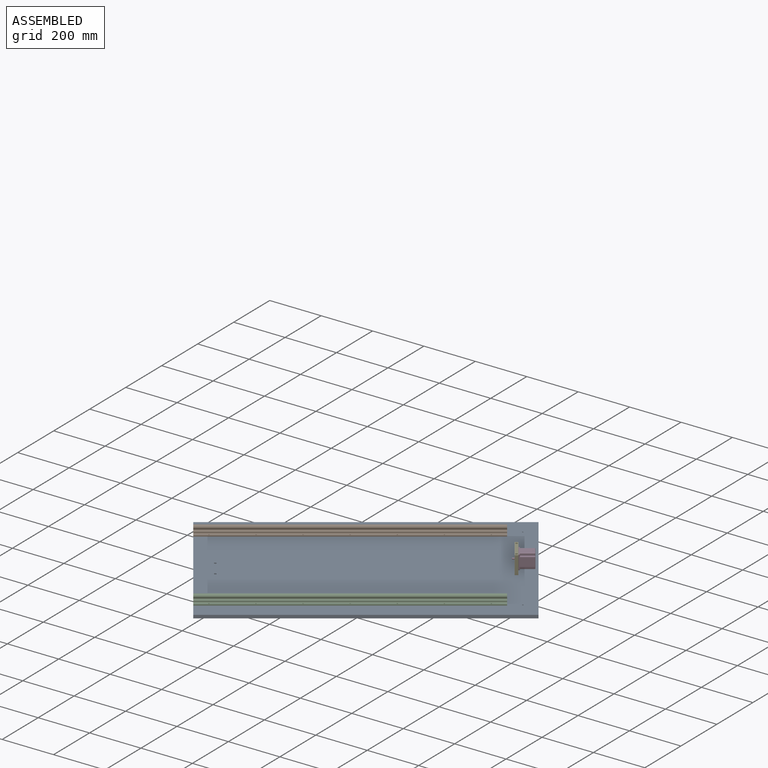
[diagram: assembled view]
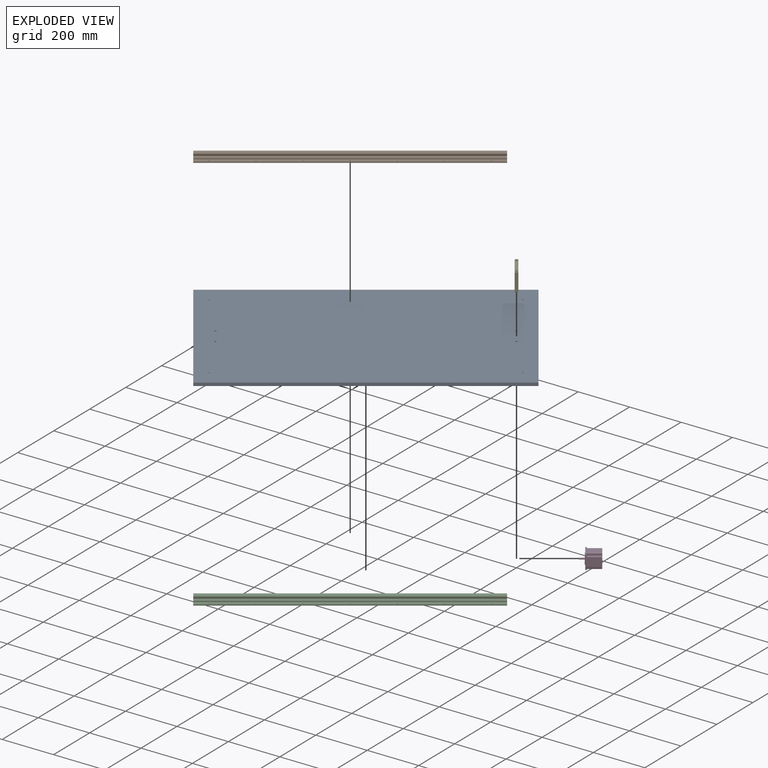
[diagram: exploded view]
GUIDED TOUR — MATED ASSEMBLY WITH SUBASSEMBLIES (Onshape document e3730855ec12d50056c667b2, AutoMate assembly e3730855ec12d50056c667b2_a9c1e416ee57fb49bd9009c7_259406f26e9c5aa0bfa9100a_default)

This assembly has 6 component occurrences arranged in 5 top-level units: 4 individual components plus 1 subassembly (S0). The tour has two levels: first the top level, where each subassembly is treated as one rigid unit; then each subassembly is toured internally in its own section (nesting deeper than one subassembly level is flattened into its subassembly's section).

Components are labeled P0..P5 across the whole record; subassembly units are labeled S0..S0. A mate is a constraint between two units; its type names the relative motion it leaves free:
  CYLINDRICAL — leaves both rotation about and translation along the listed axis free,
  FASTENED — locks the two components together rigidly (no relative motion),
  REVOLUTE — leaves rotation about the listed axis free (a hinge).
Axis/direction vectors are unit vectors and 'through' points are millimeter coordinates, both in the assembly's world frame.

TOP-LEVEL MATES (between units; each subassembly's internal mates are listed in its own section)
  1. FASTENED "Fastened 3": S0 <-> P5, direction (-0.819, -0.574, 0.000) through (242.42, 350.53, 243.28) mm
  2. REVOLUTE "Revolute 2": P5 <-> P0, axis (0.000, 0.000, -1.000) through (273.99, 294.98, 184.66) mm
  3. REVOLUTE "Revolute 1": P0 <-> P5, axis (0.000, 0.000, 1.000) through (228.11, 360.51, 184.66) mm
  4. FASTENED "Fastened 2": P0 <-> P1, direction (0.000, 0.000, 1.000) through (-709.45, -9.10, 184.66) mm
  5. FASTENED "Fastened 1": P0 <-> P2, direction (0.000, 0.000, 1.000) through (-393.99, -459.63, 184.66) mm

TOP-LEVEL ASSEMBLY ORDER
  1. P2 — the base component [order verified]
  2. P1 [order verified]
  3. P5 [order verified]
  4. S0 [order verified]
  5. P0 [order verified]
Order-tag legend:
  [order verified] — this step's position reverses a verified removal order: the component was checked to insert without passing through the ones already placed.

Of the 6 component occurrences, 2 carry the full construction recipe — the FeatureScript program that regenerates the part's solid from scratch; the rest are supplied as boundary geometry only. Each toured unit is shown spotlighted twice — assembled, then exploded with a leader line back to its socket (green = recipe-attached component, orange = geometry-only, blue = subassembly unit; the rest desaturated gray).
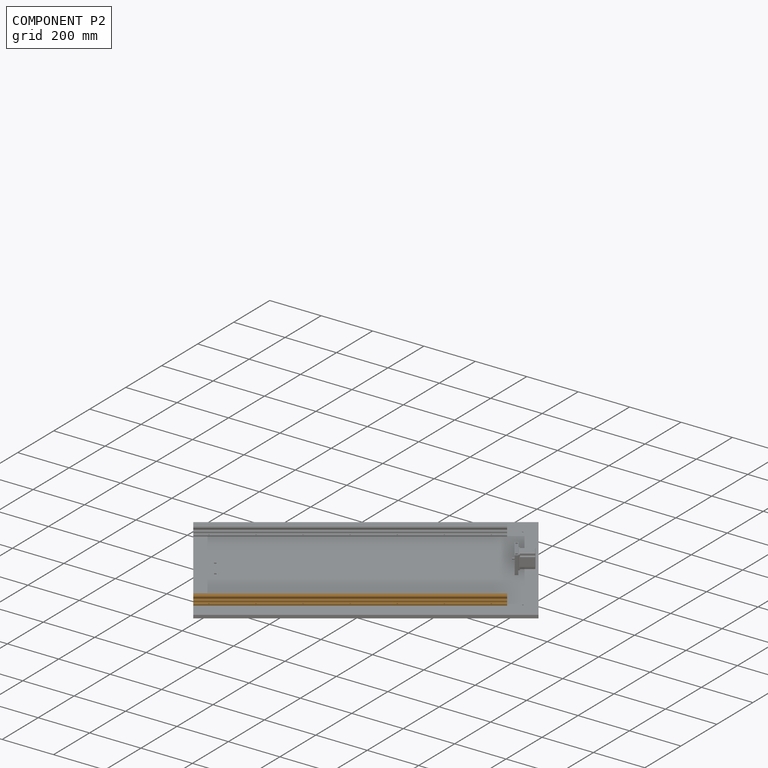
[diagram: component P2 — assembled]
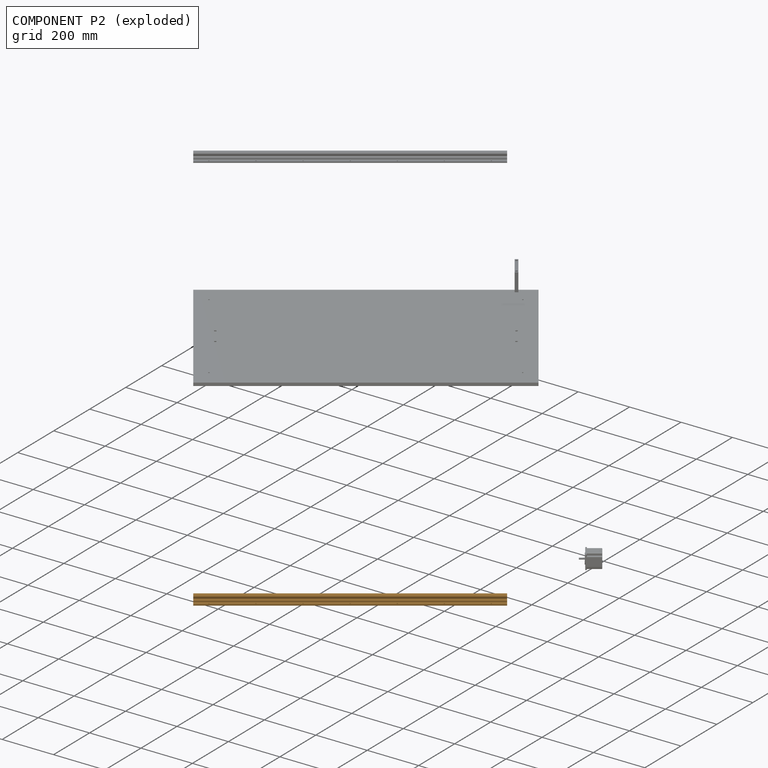
[diagram: component P2 — exploded]
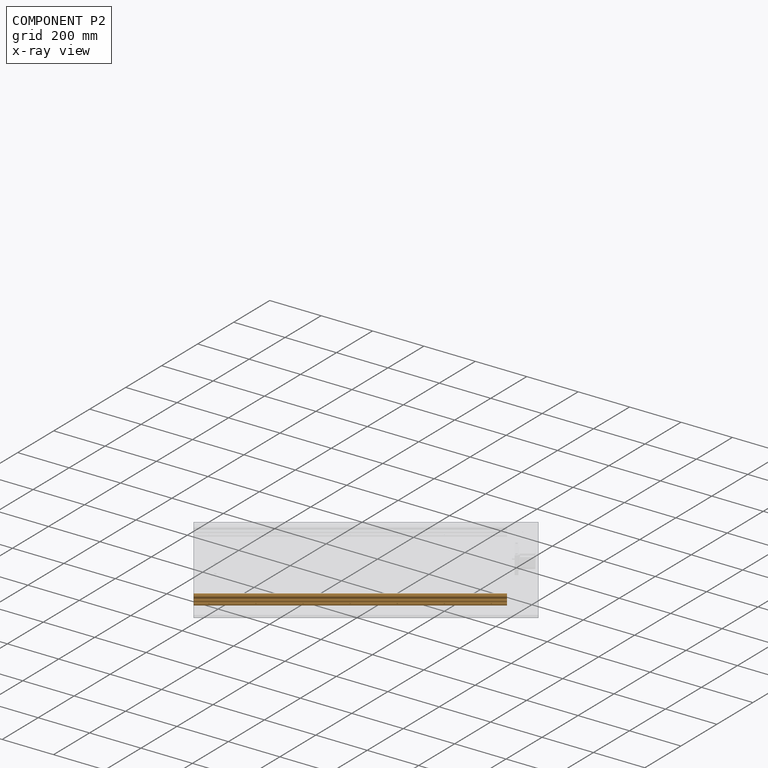
[diagram: component P2 — x-ray view]
COMPONENT P2 — geometry summary (no construction recipe available for this part):
  bounding box: 1000.0 x 40.0 x 33.0 mm
  B-rep topology: 1 solid, 30 faces, 182 edges
  volume: 588986 mm^3 (45% of its bounding box)
  symmetry: 2-fold rotationally symmetric about the z axis; mirror-symmetric across its x mid-plane, y mid-plane
Held by: FASTENED mate "Fastened 1" to P0.
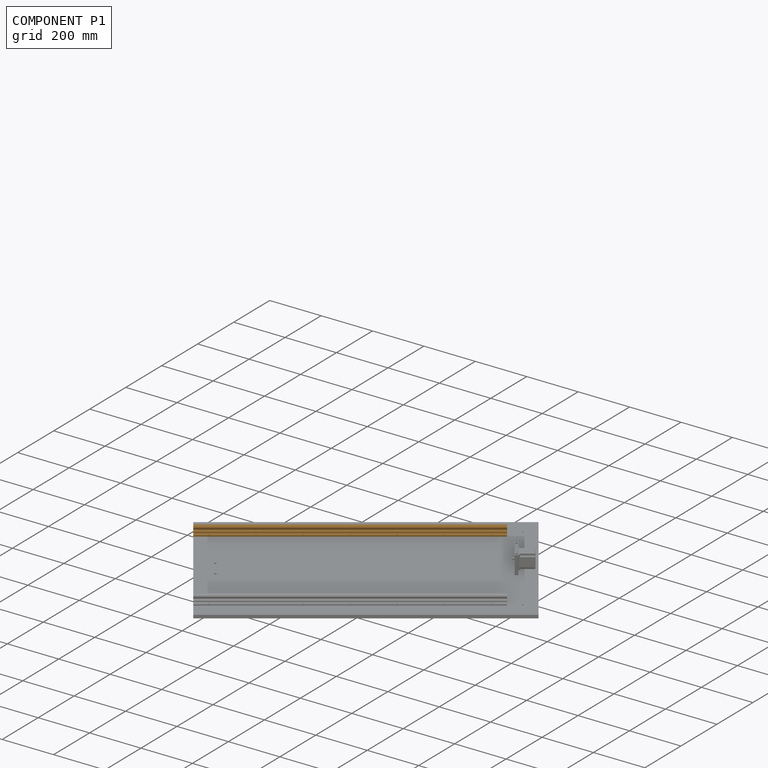
[diagram: component P1 — assembled]
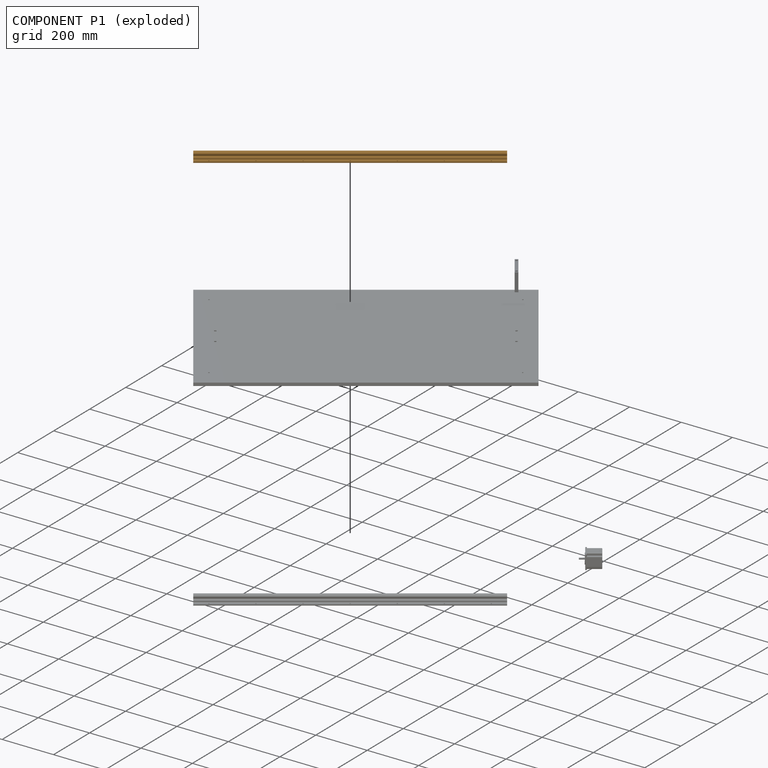
[diagram: component P1 — exploded]
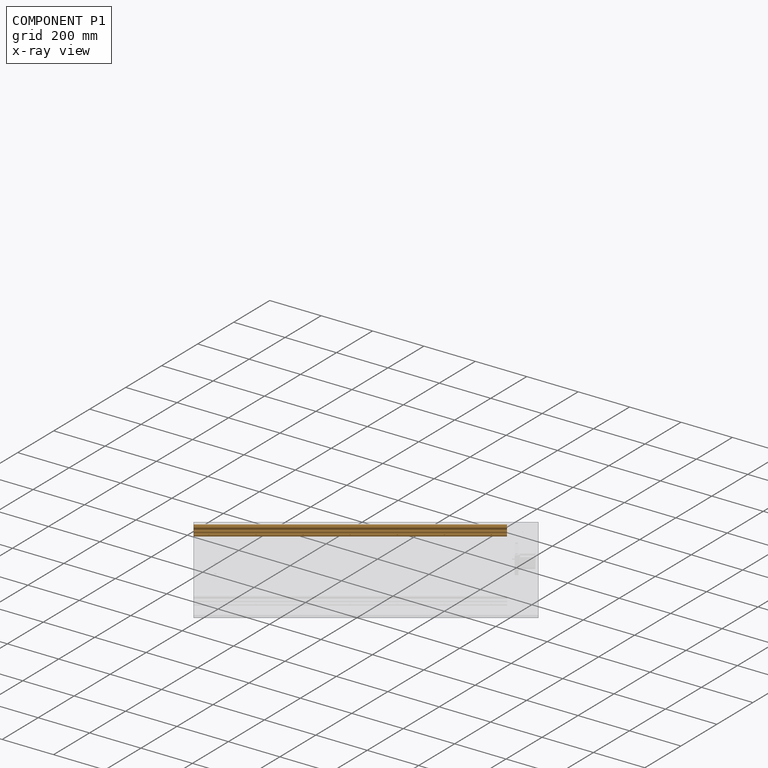
[diagram: component P1 — x-ray view]
COMPONENT P1 — geometry summary (no construction recipe available for this part):
  bounding box: 1000.0 x 40.0 x 33.0 mm
  B-rep topology: 1 solid, 30 faces, 182 edges
  volume: 588986 mm^3 (45% of its bounding box)
  symmetry: 2-fold rotationally symmetric about the z axis; mirror-symmetric across its x mid-plane, y mid-plane
Held by: FASTENED mate "Fastened 2" to P0.
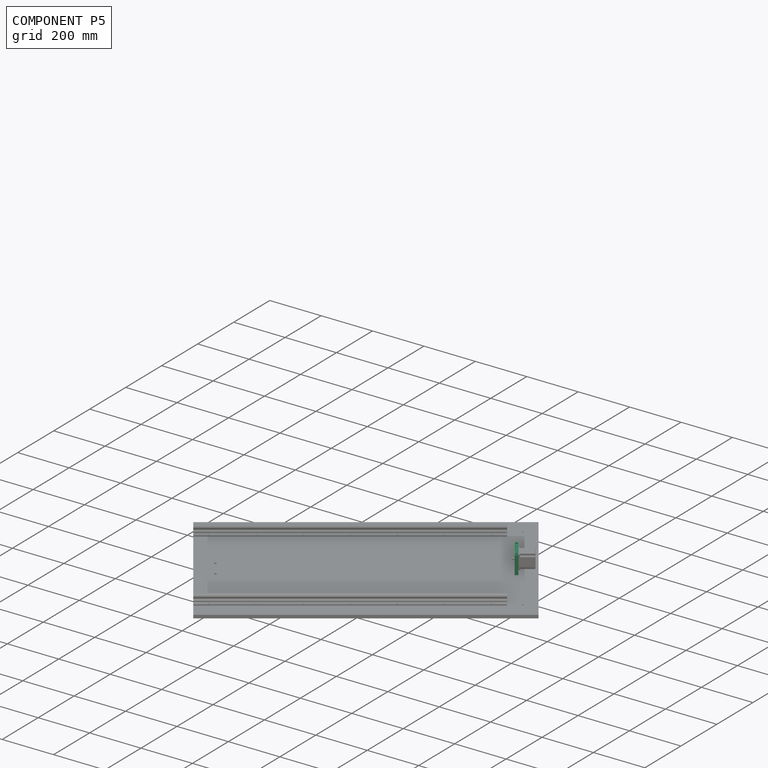
[diagram: component P5 — assembled]
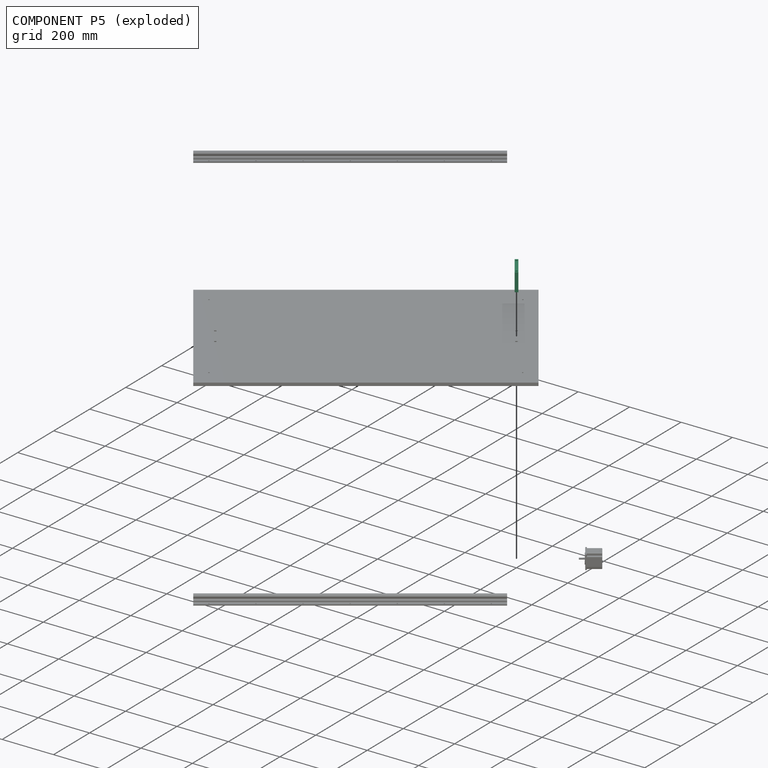
[diagram: component P5 — exploded]
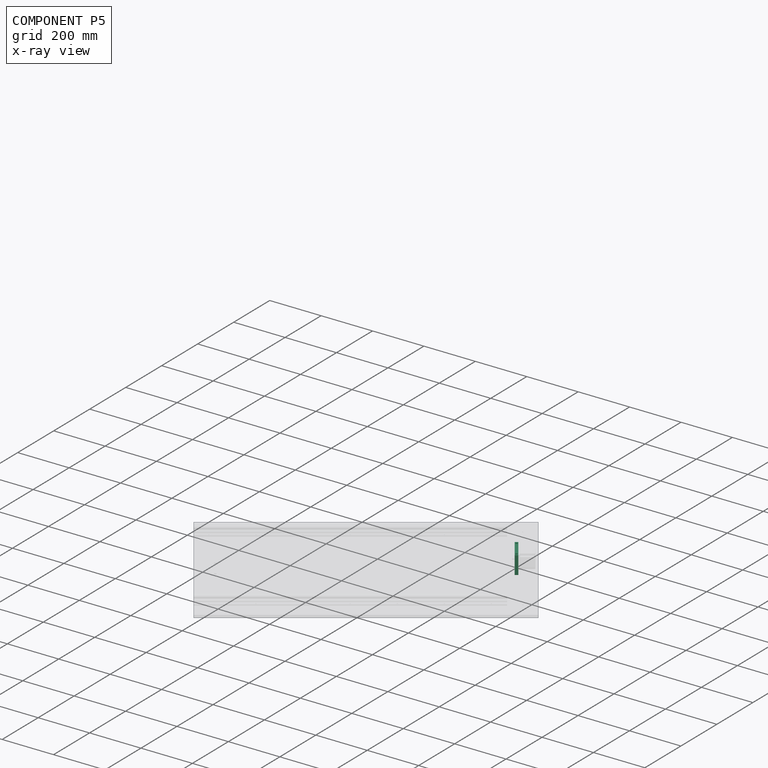
[diagram: component P5 — x-ray view]
COMPONENT P5 — recipe-attached (CADFS 00771261, mesh-verified: the recipe's output STEP matches this component's geometry to below the mesh-comparison resolution (tessellation chordal tolerance ~0.184 mm)).
Held by: FASTENED mate "Fastened 3" to P3; REVOLUTE mate "Revolute 2" to P0; REVOLUTE mate "Revolute 1" to P0.
Construction recipe (FeatureScript — the CAD program that rebuilds this solid; sketch coordinates are in the units given by the * unit suffixes, e.g. mm):

FeatureScript 1511;
import(path : "onshape/std/geometry.fs", version : "1511.0");
import(path : "onshape/std/common.fs", version : "1511.0");
const mm = millimeter;
const VERTEX = EntityType.VERTEX;
const EDGE = EntityType.EDGE;
const FACE = EntityType.FACE;
const BODY = EntityType.BODY;
function v(x, y){return vector(x, y);}
function OD(order){return orderDisambiguation(order);}
function OSD(set){return originalSetDisambiguation(set);}
function TD(topology){return topologyDisambiguation(topology);}
function TDD(query){return trueDependencyDisambiguation(query);}
function sQuery(a, b, c) {return sketchEntityQuery(a, b, c);}

annotation { "Feature Type Name" : "Feature", "Feature Type Description" : "" }
export const myFeature = defineFeature(function(context is Context, id is Id, definition is map)
    precondition{}
    {
        {
            var Q0;
            Q0=qCreatedBy(makeId("Front.planeOp"),FACE);
            var sketch = newSketch(context, id + "F0", { "sketchPlane" : qUnion([Q0])});
            skLineSegment(sketch, "E0.bottom", {"start": v(50, -35) * mm, "end": v(-50, -35) * mm});
            skLineSegment(sketch, "E0.top", {"start": v(50, 35) * mm, "end": v(-50, 35) * mm});
            skLineSegment(sketch, "E0.left", {"start": v(50, -35) * mm, "end": v(50, 35) * mm});
            skLineSegment(sketch, "E0.right", {"start": v(-50, -35) * mm, "end": v(-50, 35) * mm});
            skPoint(sketch, "E0.middle", {"position": v(0, 0) * mm});
            skSolve(sketch);
        }
        {
            var Q0;
            Q0 = qSketchRegion(id + "F0", true);
            extrude(context, id + "F1", {"entities" : qUnion([Q0]), "depth" : 12 * mm, "offsetDistance" : 25 * mm});
        }
        {
            var Q0;
            Q0=makeQuery(id+"F1.opExtrude","CAP_FACE",FACE,{"disambiguationData":[OSD([sQuery(id+"F0.wireOp",EDGE,"E0.bottom"),sQuery(id+"F0.wireOp",EDGE,"E0.top"),sQuery(id+"F0.wireOp",EDGE,"E0.left"),sQuery(id+"F0.wireOp",EDGE,"E0.right")])],"isStart":false});
            var sketch = newSketch(context, id + "F2", { "sketchPlane" : qUnion([Q0])});
            skCircle(sketch, "E1", {"center": v(0, 0) * mm, "radius": 19.3 * mm});
            skLineSegment(sketch, "E2.bottom", {"start": v(-23.62, 23.62) * mm, "end": v(23.62, 23.62) * mm, "construction": true});
            skLineSegment(sketch, "E2.top", {"start": v(-23.62, -23.62) * mm, "end": v(23.62, -23.62) * mm, "construction": true});
            skLineSegment(sketch, "E2.left", {"start": v(-23.62, 23.62) * mm, "end": v(-23.62, -23.62) * mm, "construction": true});
            skLineSegment(sketch, "E2.right", {"start": v(23.62, 23.62) * mm, "end": v(23.62, -23.62) * mm, "construction": true});
            skCircle(sketch, "E3", {"center": v(-23.62, 23.62) * mm, "radius": 1.5 * mm});
            skCircle(sketch, "E4", {"center": v(23.62, 23.62) * mm, "radius": 1.5 * mm});
            skCircle(sketch, "E5", {"center": v(23.62, -23.62) * mm, "radius": 1.5 * mm});
            skCircle(sketch, "E6", {"center": v(-23.62, -23.62) * mm, "radius": 1.5 * mm});
            skSolve(sketch);
        }
        {
            var Q0;
            Q0 = qSketchRegion(id + "F2", true);
            extrude(context, id + "F3", {"entities" : qUnion([Q0]), "operationType" : NewBodyOperationType.REMOVE, "endBound" : BoundingType.THROUGH_ALL, "oppositeDirection" : true, "depth" : 25 * mm, "offsetDistance" : 25 * mm});
        }
        {
            var Q0;
            Q0=makeQuery(id+"F1.opExtrude","SWEPT_FACE",FACE,{"disambiguationData":[OSD([sQuery(id+"F0.wireOp",EDGE,"E0.top")])]});
            var sketch = newSketch(context, id + "F4", { "sketchPlane" : qUnion([Q0])});
            skLineSegment(sketch, "E7", {"start": v(-50, -6) * mm, "end": v(50, -6) * mm, "construction": true});
            skPoint(sketch, "E8", {"position": v(-40, -6) * mm});
            skPoint(sketch, "E9", {"position": v(40, -6) * mm});
            skLineSegment(sketch, "E10", {"start": v(0, 0) * mm, "end": v(0, -12) * mm, "construction": true});
            skSolve(sketch);
        }
        {
            var Q0;
            Q0=sQuery(id+"F4.wireOp",VERTEX,"E8");
            var Q1;
            Q1=sQuery(id+"F4.wireOp",VERTEX,"E9");
            var Q2;
            Q2=makeQuery(id+"F1.opExtrude","SWEPT_BODY",BODY,{"disambiguationData":[OSD([sQuery(id+"F0.wireOp",EDGE,"E0.bottom"),sQuery(id+"F0.wireOp",EDGE,"E0.top"),sQuery(id+"F0.wireOp",EDGE,"E0.left"),sQuery(id+"F0.wireOp",EDGE,"E0.right")])]});
            hole(context, id + "F5", {"style" : HoleStyle.SIMPLE, "endStyle" : HoleEndStyle.THROUGH, "holeDiameter" : 8 * mm, "majorDiameter" : 5 * mm, "isTappedThrough" : true, "tappedDepth" : 12 * mm, "tapClearance" : 3, "locations" : qUnion([Q0, Q1]), "scope" : qUnion([Q2])});
        }
    });
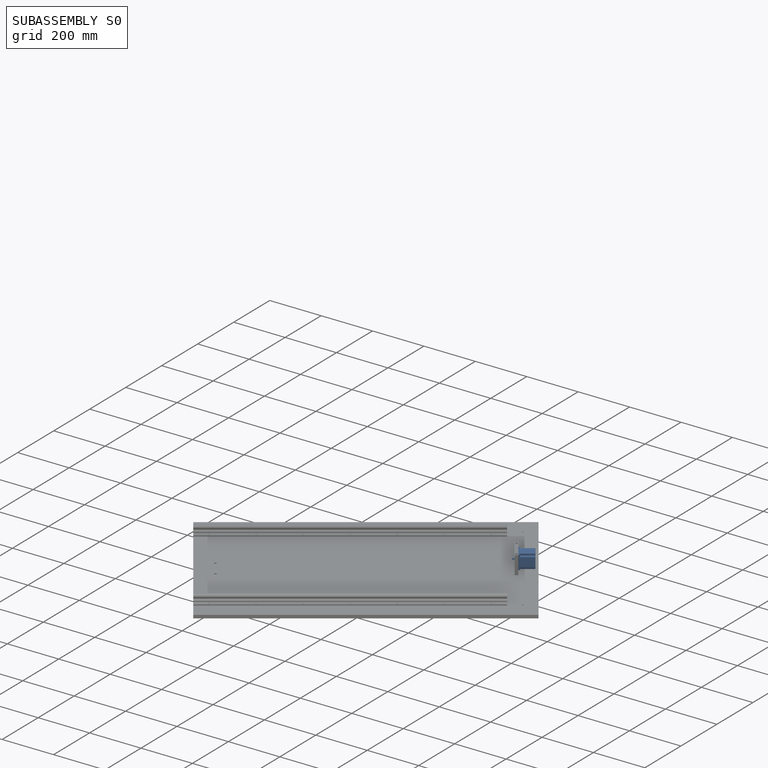
[diagram: subassembly S0 — assembled]
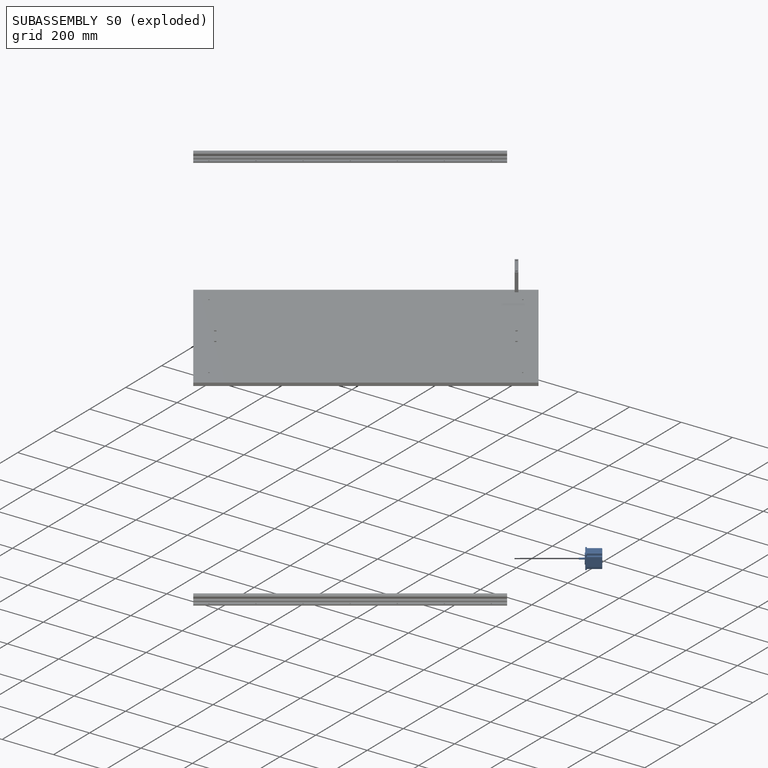
[diagram: subassembly S0 — exploded]
SUBASSEMBLY S0 — 2 components (P3, P4), of which 0 recipe-attached; toured below.
Held by: FASTENED mate "Fastened 3" to P5.
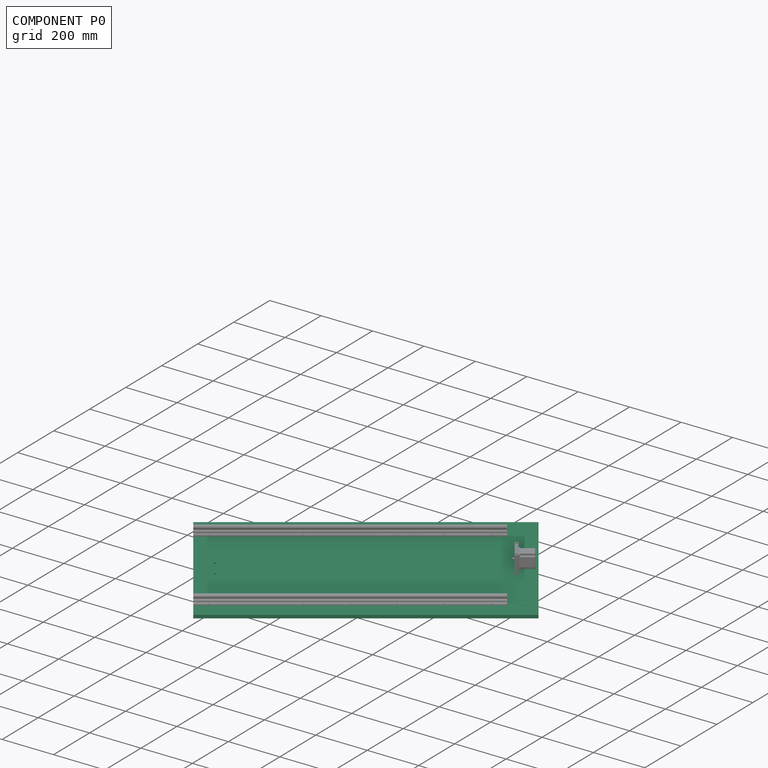
[diagram: component P0 — assembled]
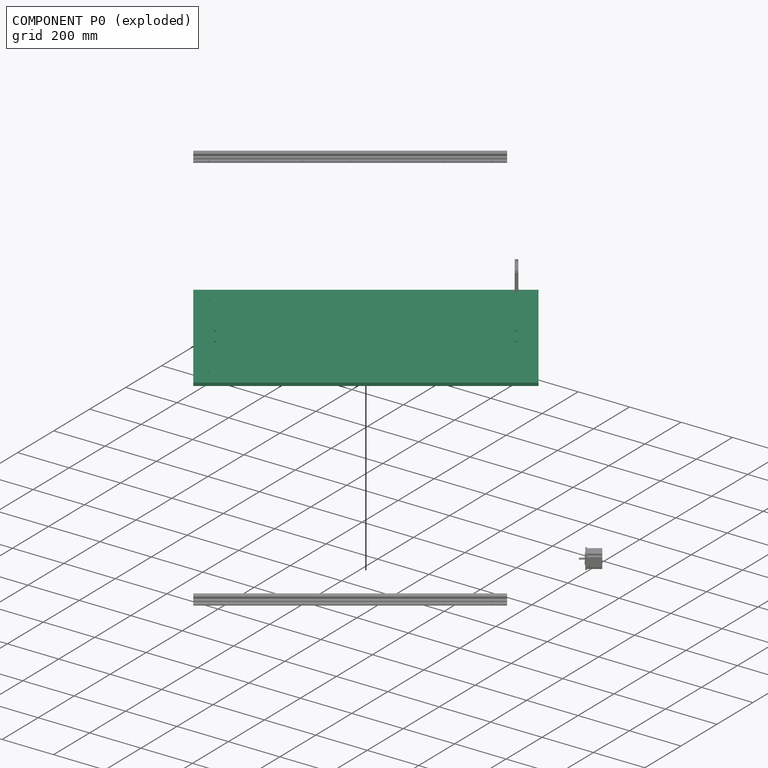
[diagram: component P0 — exploded]
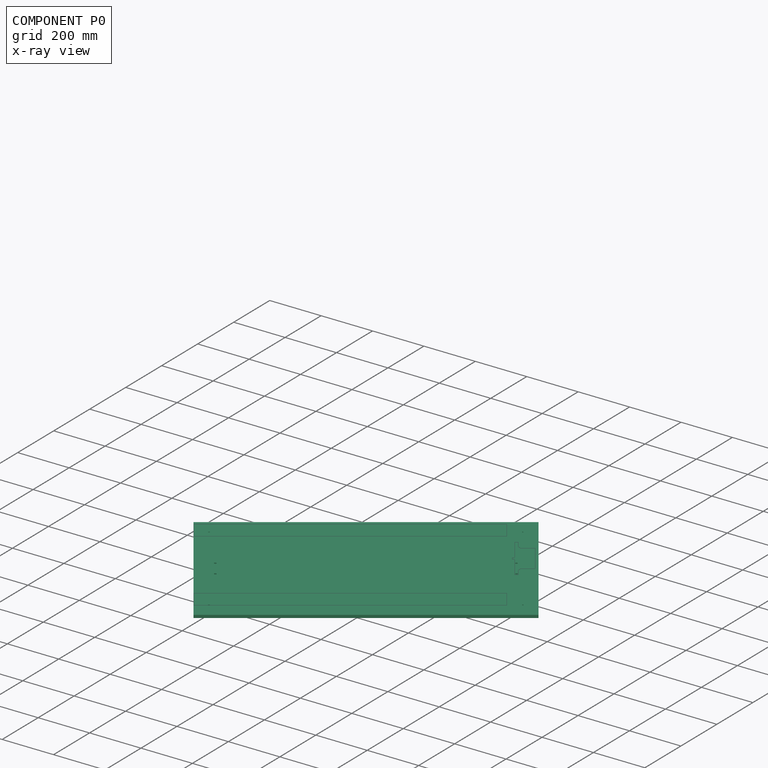
[diagram: component P0 — x-ray view]
COMPONENT P0 — recipe-attached (CADFS 00771262, mesh-verified: the recipe's output STEP matches this component's geometry to below the mesh-comparison resolution (tessellation chordal tolerance ~1.96 mm)).
Held by: REVOLUTE mate "Revolute 2" to P5; REVOLUTE mate "Revolute 1" to P5; FASTENED mate "Fastened 2" to P1; FASTENED mate "Fastened 1" to P2.
Construction recipe (FeatureScript — the CAD program that rebuilds this solid; sketch coordinates are in the units given by the * unit suffixes, e.g. mm):

FeatureScript 1511;
import(path : "onshape/std/geometry.fs", version : "1511.0");
import(path : "onshape/std/common.fs", version : "1511.0");
const mm = millimeter;
const VERTEX = EntityType.VERTEX;
const EDGE = EntityType.EDGE;
const FACE = EntityType.FACE;
const BODY = EntityType.BODY;
function v(x, y){return vector(x, y);}
function OD(order){return orderDisambiguation(order);}
function OSD(set){return originalSetDisambiguation(set);}
function TD(topology){return topologyDisambiguation(topology);}
function TDD(query){return trueDependencyDisambiguation(query);}
function sQuery(a, b, c) {return sketchEntityQuery(a, b, c);}

annotation { "Feature Type Name" : "Feature", "Feature Type Description" : "" }
export const myFeature = defineFeature(function(context is Context, id is Id, definition is map)
    precondition{}
    {
        {
            var Q0;
            Q0=qCreatedBy(makeId("Top.planeOp"),FACE);
            var sketch = newSketch(context, id + "F0", { "sketchPlane" : qUnion([Q0])});
            skLineSegment(sketch, "E0.bottom", {"start": v(350, -550) * mm, "end": v(-350, -550) * mm});
            skLineSegment(sketch, "E0.top", {"start": v(350, 550) * mm, "end": v(-350, 550) * mm});
            skLineSegment(sketch, "E0.left", {"start": v(350, -550) * mm, "end": v(350, 550) * mm});
            skLineSegment(sketch, "E0.right", {"start": v(-350, -550) * mm, "end": v(-350, 550) * mm});
            skPoint(sketch, "E0.middle", {"position": v(0, 0) * mm});
            skSolve(sketch);
        }
        {
            var Q0;
            Q0 = qSketchRegion(id + "F0", true);
            extrude(context, id + "F1", {"entities" : qUnion([Q0]), "depth" : 12 * mm, "offsetDistance" : 25 * mm});
        }
        {
            var Q0;
            Q0=makeQuery(id+"F1.opExtrude","CAP_FACE",FACE,{"disambiguationData":[OSD([sQuery(id+"F0.wireOp",EDGE,"E0.bottom"),sQuery(id+"F0.wireOp",EDGE,"E0.top"),sQuery(id+"F0.wireOp",EDGE,"E0.left"),sQuery(id+"F0.wireOp",EDGE,"E0.right")])],"isStart":false});
            var sketch = newSketch(context, id + "F2", { "sketchPlane" : qUnion([Q0])});
            skLineSegment(sketch, "E1.bottom", {"start": v(275, 500) * mm, "end": v(-275, 500) * mm, "construction": true});
            skLineSegment(sketch, "E1.top", {"start": v(275, -500) * mm, "end": v(-275, -500) * mm, "construction": true});
            skLineSegment(sketch, "E1.left", {"start": v(275, 500) * mm, "end": v(275, -500) * mm, "construction": true});
            skLineSegment(sketch, "E1.right", {"start": v(-275, 500) * mm, "end": v(-275, -500) * mm, "construction": true});
            skCircle(sketch, "E2", {"center": v(-275, -500) * mm, "radius": 2.5 * mm});
            skCircle(sketch, "E3", {"center": v(275, -500) * mm, "radius": 2.5 * mm});
            skCircle(sketch, "E4", {"center": v(-275, 500) * mm, "radius": 2.5 * mm});
            skCircle(sketch, "E5", {"center": v(275, 500) * mm, "radius": 2.5 * mm});
            skLineSegment(sketch, "E6.bottom", {"start": v(40, -480) * mm, "end": v(-40, -480) * mm, "construction": true});
            skLineSegment(sketch, "E6.top", {"start": v(40, 480) * mm, "end": v(-40, 480) * mm, "construction": true});
            skLineSegment(sketch, "E6.left", {"start": v(40, -480) * mm, "end": v(40, 480) * mm, "construction": true});
            skLineSegment(sketch, "E6.right", {"start": v(-40, -480) * mm, "end": v(-40, 480) * mm, "construction": true});
            skPoint(sketch, "E6.middle", {"position": v(0, 0) * mm});
            skSolve(sketch);
        }
        {
            var Q0;
            Q0 = qSketchRegion(id + "F2", true);
            extrude(context, id + "F3", {"entities" : qUnion([Q0]), "operationType" : NewBodyOperationType.REMOVE, "endBound" : BoundingType.THROUGH_ALL, "oppositeDirection" : true, "depth" : 25 * mm, "offsetDistance" : 25 * mm});
        }
        {
            var Q0;
            Q0=sQuery(id+"F2.wireOp",VERTEX,"E6.top.start");
            var Q1;
            Q1=sQuery(id+"F2.wireOp",VERTEX,"E6.top.end");
            var Q2;
            Q2=sQuery(id+"F2.wireOp",VERTEX,"E6.bottom.start");
            var Q3;
            Q3=sQuery(id+"F2.wireOp",VERTEX,"E6.bottom.end");
            var Q4;
            Q4=makeQuery(id+"F1.opExtrude","SWEPT_BODY",BODY,{"disambiguationData":[OSD([sQuery(id+"F0.wireOp",EDGE,"E0.bottom"),sQuery(id+"F0.wireOp",EDGE,"E0.top"),sQuery(id+"F0.wireOp",EDGE,"E0.left"),sQuery(id+"F0.wireOp",EDGE,"E0.right")])]});
            hole(context, id + "F4", {"style" : HoleStyle.SIMPLE, "endStyle" : HoleEndStyle.THROUGH, "holeDiameter" : 8 * mm, "majorDiameter" : 5 * mm, "isTappedThrough" : true, "tappedDepth" : 12 * mm, "tapClearance" : 3, "locations" : qUnion([Q0, Q1, Q2, Q3]), "scope" : qUnion([Q4])});
        }
    });
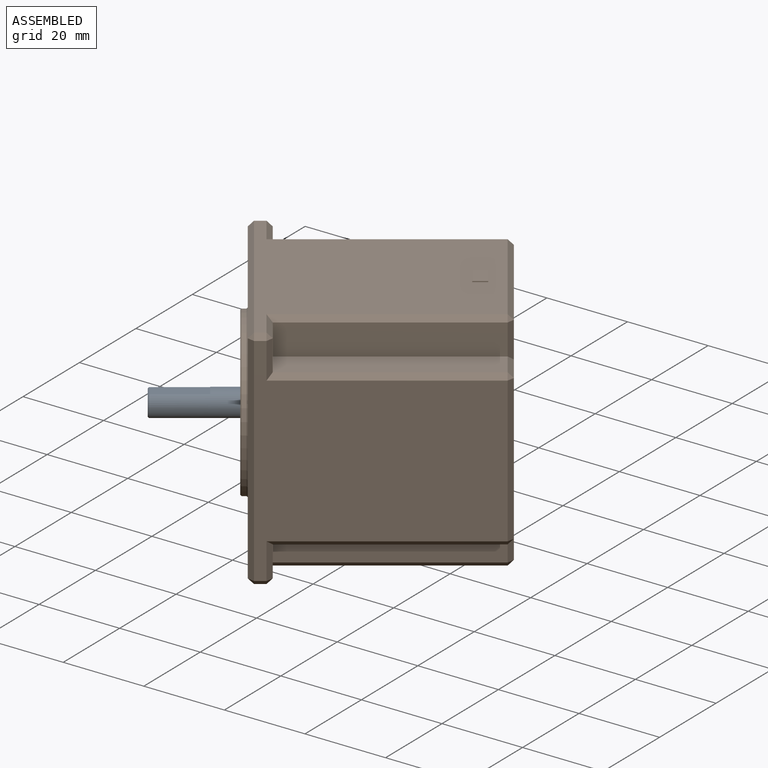
[diagram: subassembly S0 — assembled view]
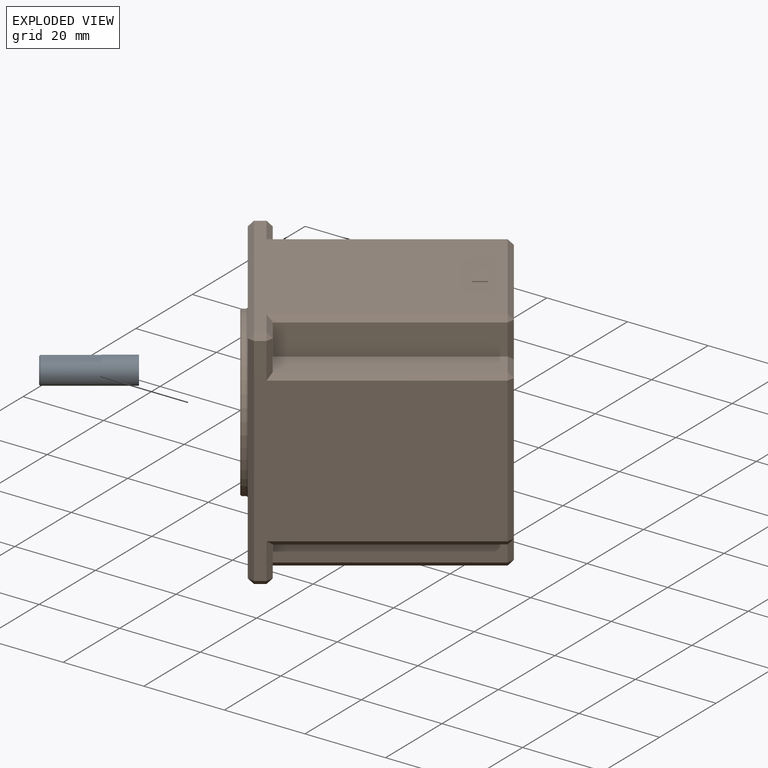
[diagram: subassembly S0 — exploded view]
SUBASSEMBLY S0 TOUR — 2 components, shown here in isolation at its own camera.

INTERNAL MATES
  1. CYLINDRICAL "Cylindrical 1": P3 <-> P4, axis (-0.819, -0.574, 0.000) through (255.97, 331.18, 219.66) mm

ASSEMBLY ORDER (within the subassembly)
  1. P4 — the base component [order verified]
  2. P3 [order verified]
Order-tag legend:
  [order verified] — this step's position reverses a verified removal order: the component was checked to insert without passing through the ones already placed.
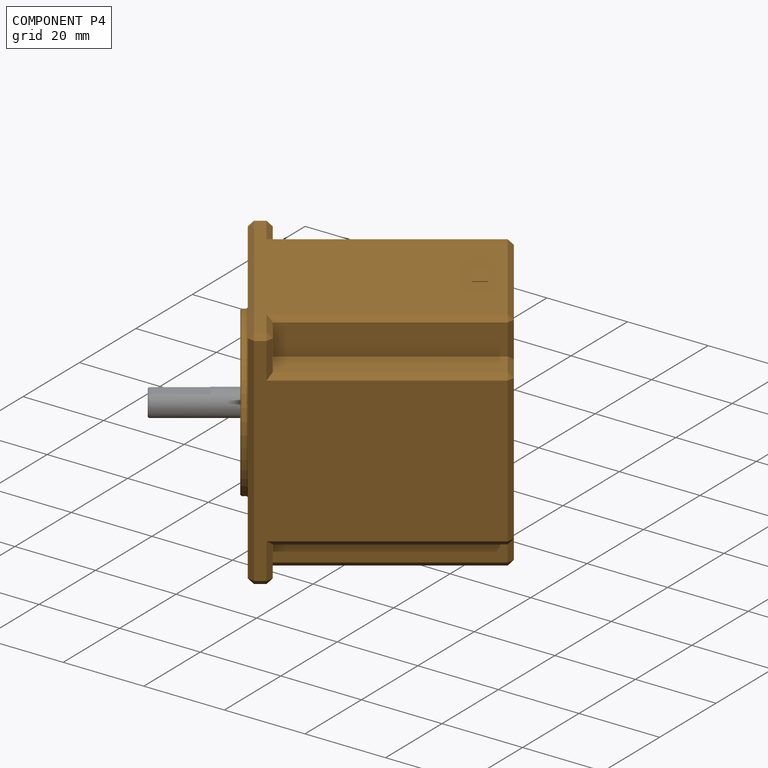
[diagram: component P4 — assembled]
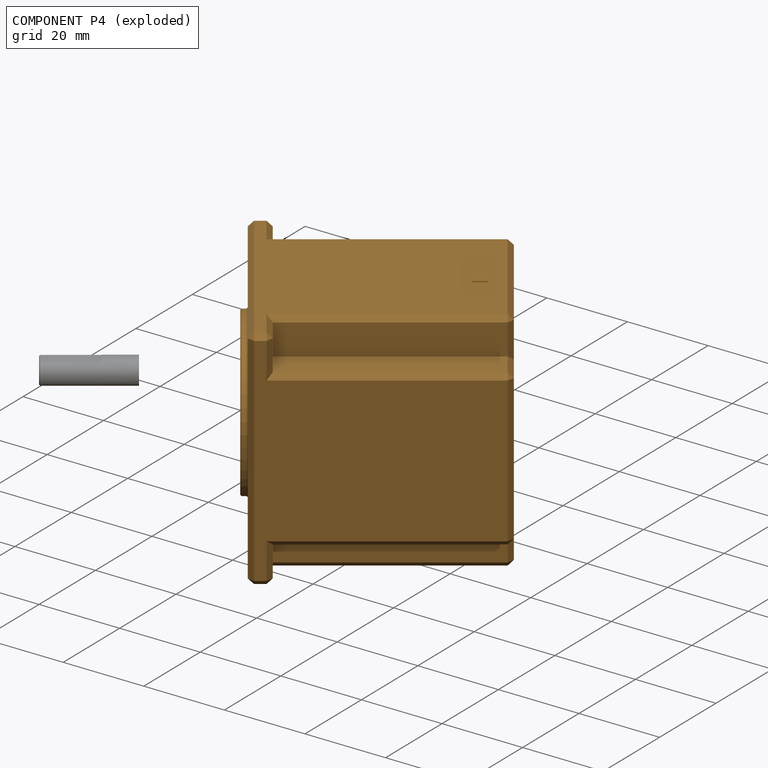
[diagram: component P4 — exploded]
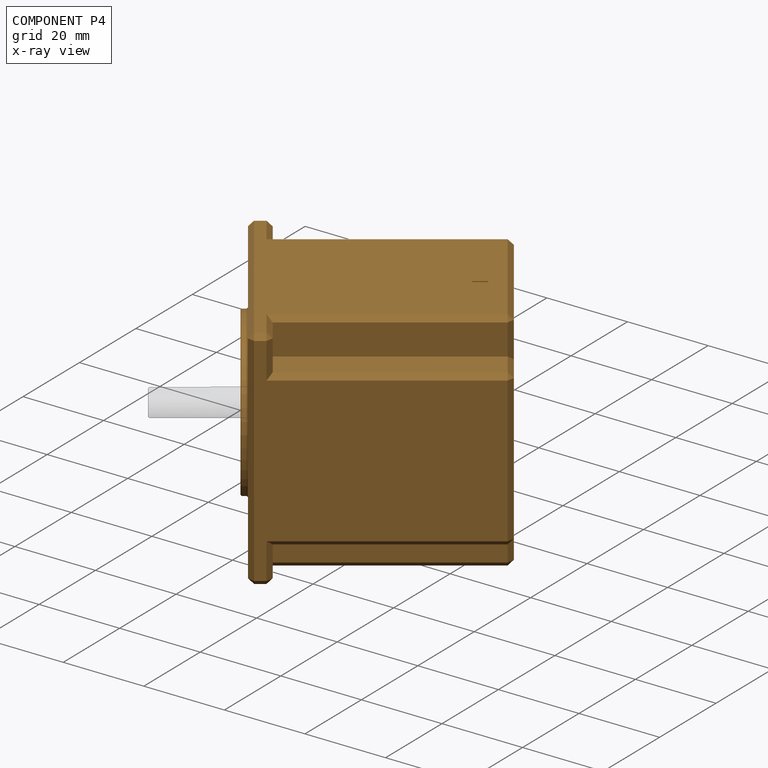
[diagram: component P4 — x-ray view]
COMPONENT P4 — geometry summary (no construction recipe available for this part):
  bounding box: 56.6 x 56.4 x 55.6 mm
  B-rep topology: 1 solid, 94 faces, 402 edges
  volume: 157335 mm^3 (89% of its bounding box)
  symmetry: 4-fold rotationally symmetric about the y axis; mirror-symmetric across its x mid-plane, z mid-plane
Held by: CYLINDRICAL mate "Cylindrical 1" to P3.
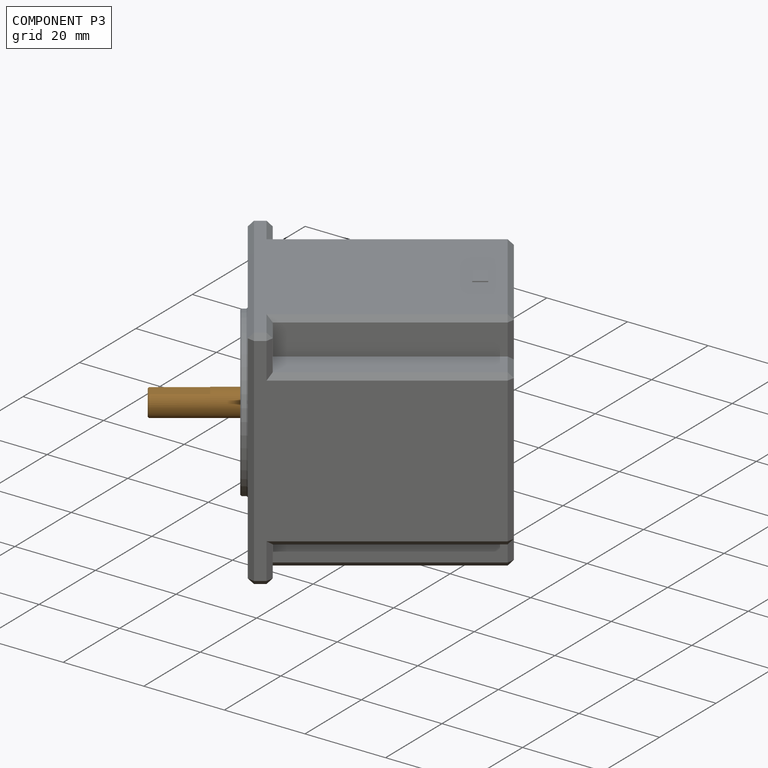
[diagram: component P3 — assembled]
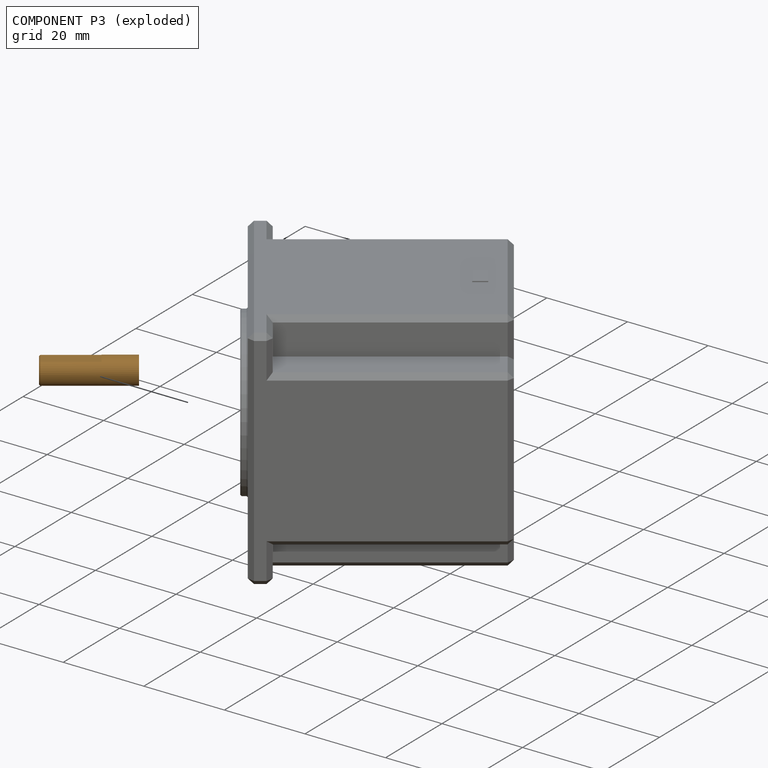
[diagram: component P3 — exploded]
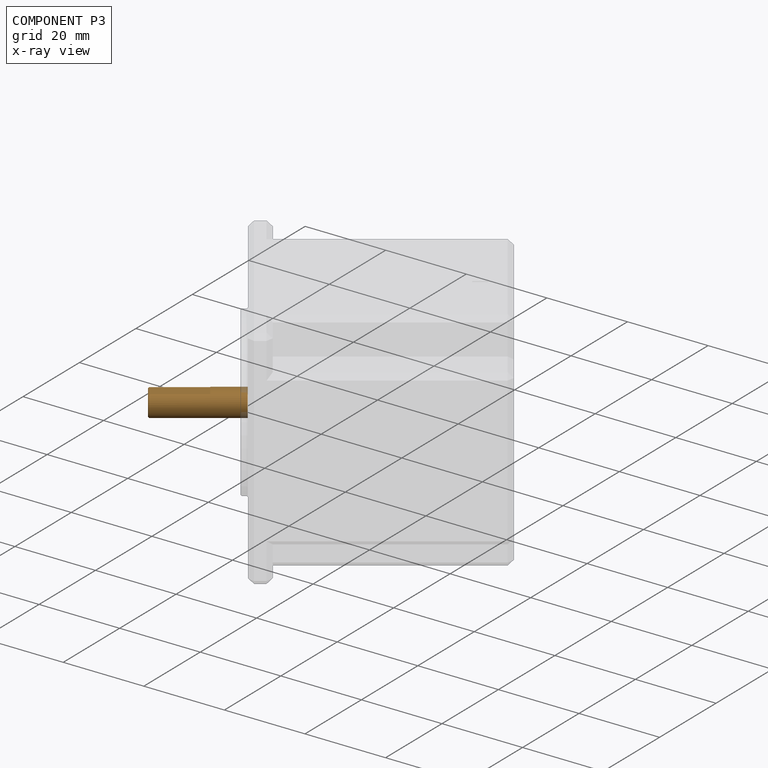
[diagram: component P3 — x-ray view]
COMPONENT P3 — geometry summary (no construction recipe available for this part):
  bounding box: 20.3 x 6.4 x 6.4 mm
  B-rep topology: 1 solid, 7 faces, 26 edges
  volume: 626 mm^3 (76% of its bounding box)
  symmetry: mirror-symmetric across its x mid-plane
Held by: CYLINDRICAL mate "Cylindrical 1" to P4.
PROVENANCE & LICENSES
Assembly (occurrences, transforms, mates, per-part STEP geometry): AutoMate dataset, Zenodo record 7776208, CC0.
Construction recipes: CADFS (HuggingFace VladPyatov/CADFS, CC-BY-4.0, layered over the ABC dataset), FeatureScript reconstruction programs keyed by ABC model id.
Join: ABC meta listings map ABC model id -> Onshape documentId; within a shared document, parts are matched by geometric signature (bounding-box dims + volume at 0.1% relative tolerance, exact B-rep face/solid counts).
Verification: 2 of this assembly's 6 components carry a recipe attachment, and every attachment is mesh-verified: the CADFS STEP and the AutoMate member STEP were compared as meshes in their shared local frame (symmetric sampled-point-to-mesh distance); worst across the 2 attachments: below the mesh-comparison resolution (tessellation chordal tolerance ~1.96 mm) on a 1304 mm part.
Renders: orthographic iso camera (az 35 / el 25); the floor grid conveys scale (grid pitch printed in each image; no ruler). In the exploded view each component is displaced by its stored offset vector: the offsets alone carry the explosion direction (mate normal/axis signs are not orientation cues and do not encode it), and separation distances are assigned per mate-chain, not proportionally to assembly-order depth.
